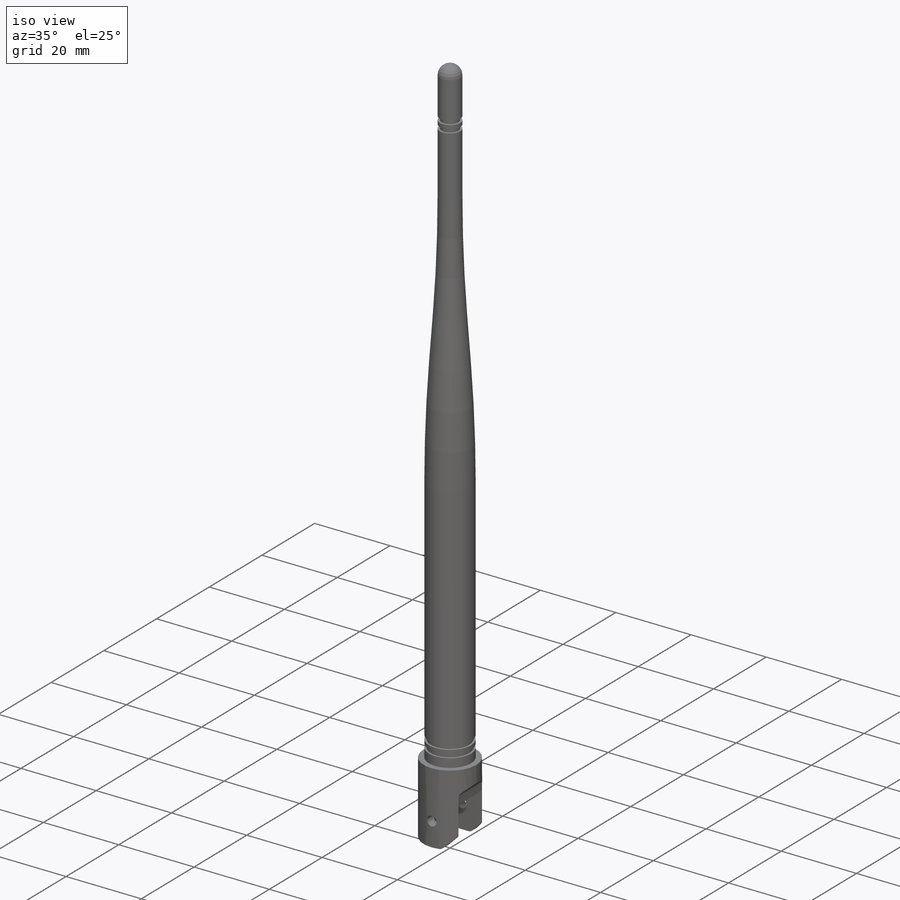
[diagram: iso view]
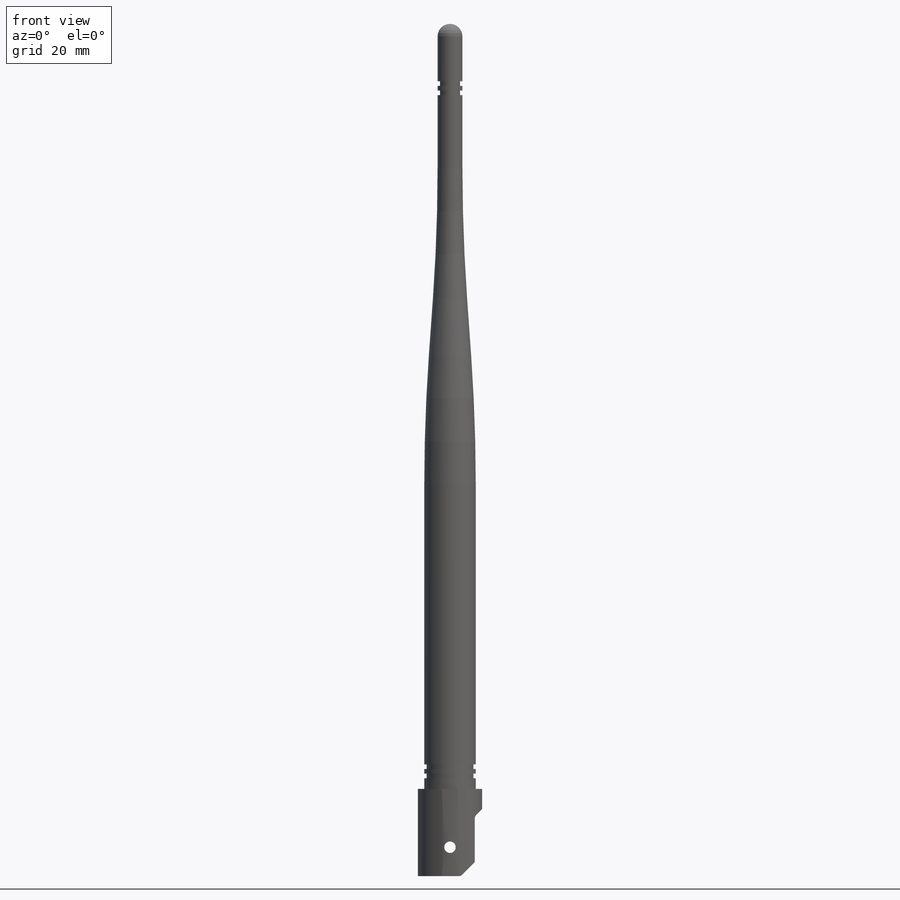
[diagram: front view]
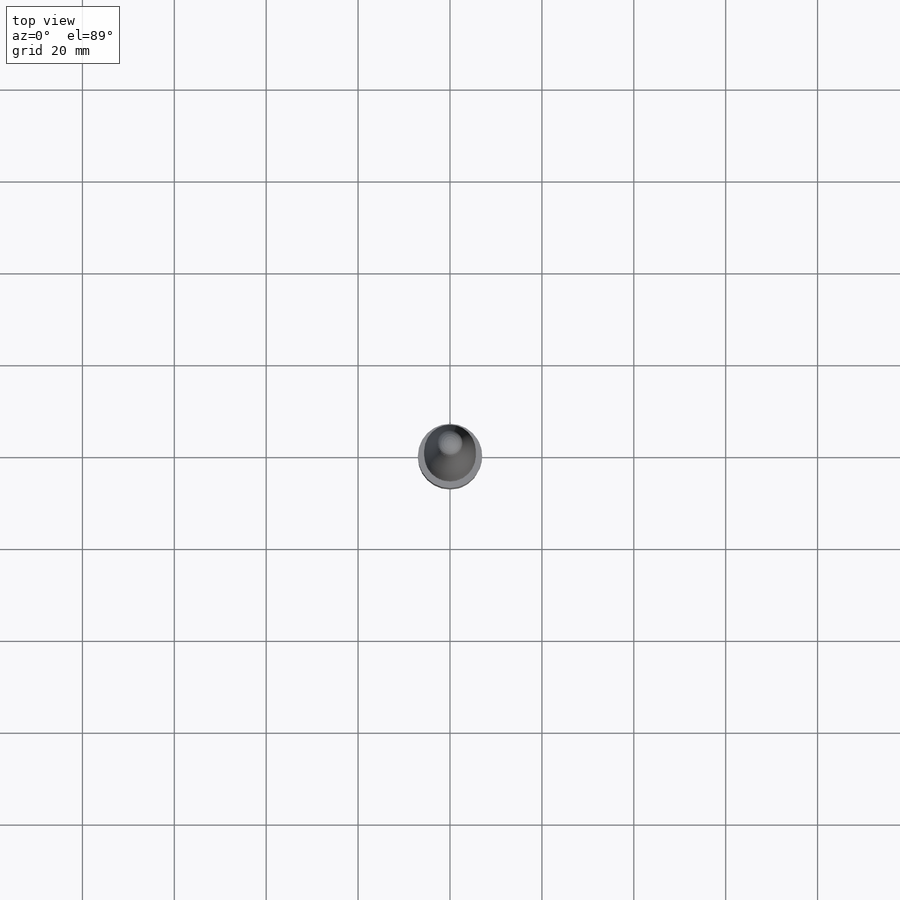
[diagram: top view]
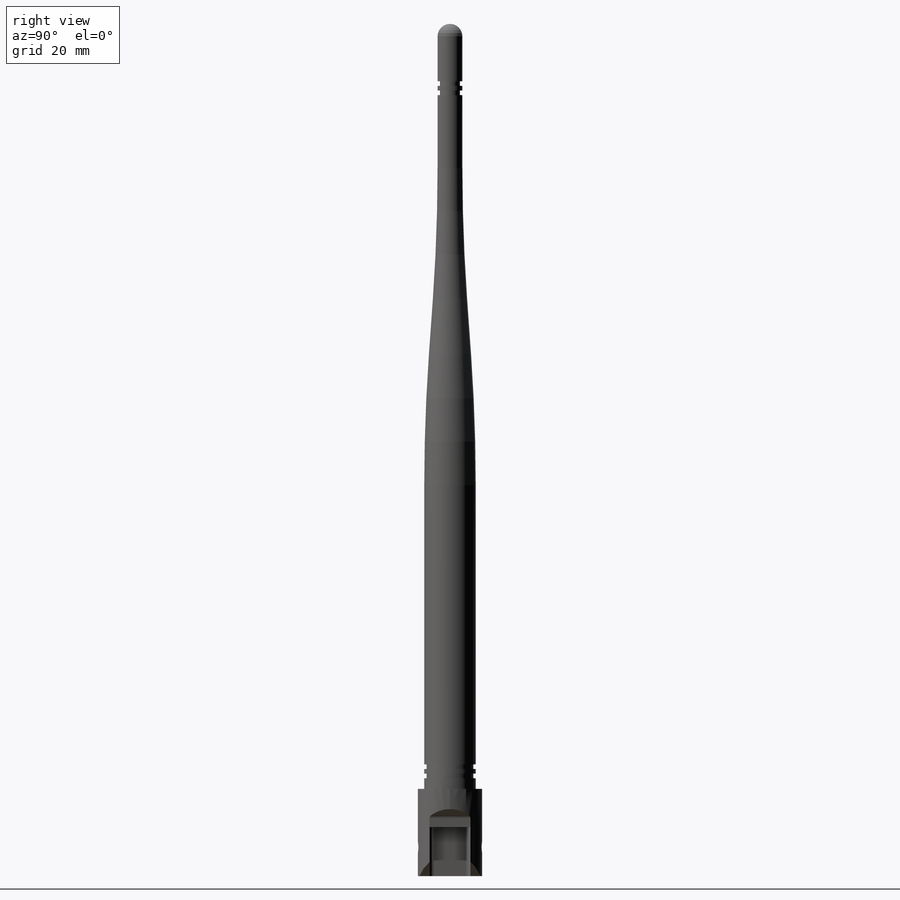
[diagram: right view]
SOLIDWORKS PART (.sldprt)
format: sldprt  version: not decoded by parser v0  size: 216,576 bytes
history: native  units: mm
features: sketch x4, cut_extrude x2, material x1, revolve x1, extrude x1, fillet x1 (+12 scaffold rows collapsed)
feature tree (22):
  scaffold x12  (default folders/planes/origin — collapsed)
  material  "Material <not specified>"
  sketch  "Sketch1"  dims[c1.D16=400.0mm c1.D1=5.6mm c1.D2=2.705mm c1.D3=5.095mm c1.D4=2.17mm c1.D5=12.5mm c1.D6=~21.538082mm c1.D7=1.0mm c1.D8=1.0mm c1.D9=~19.538082mm c2.D6=1.0mm c2.D9=1.0mm c2.D10=1.0mm c2.D11=1.0mm c2.D12=5.32mm c2.D13=154.0mm c2.D14=75.0mm c2.D15=30.0mm]
  revolve  "Revolve1"  Angle=360deg
  sketch  "Sketch3"  dims[D1=14.0mm]
  extrude  "Boss-Extrude1"  Depth=19mm
  sketch  "Sketch4"  dims[D1=8.3mm D2=2.54mm D3=2.54mm]
  cut_extrude  "Cut-Extrude1"  Depth=4.46mm
  sketch  "Sketch5"  dims[c1.D1=2.5mm c1.D2=13.0mm c1.D3=~4.14421mm c2.D3=45.0deg c2.D4=~5.121307mm c3.D4=45.0deg c3.D5=6.3mm]
  cut_extrude  "Cut-Extrude2"  Depth=14.46mm
  fillet  "Fillet1"  Radius=1mm
decode coverage: 9 of 9 modeling features carry decoded parameters
note: ~ marks probable driven/reference dimensions
note: suppression state not decoded; provenance and decode notes live in map.json
